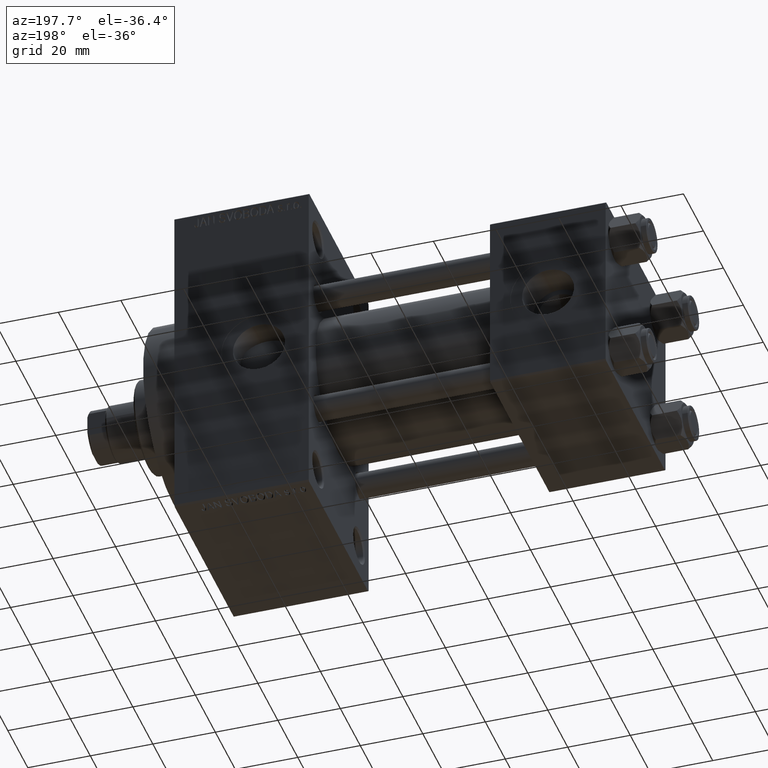
[diagram: clean part render]
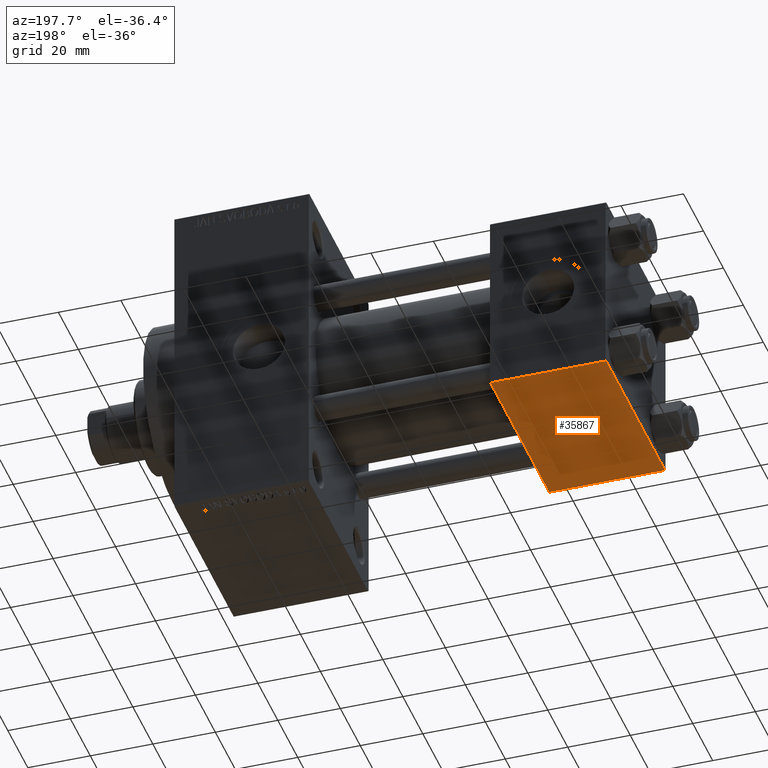
[diagram: same view with one face highlighted and labeled with its STEP entity id]
A machine part, auxiliary view. The second image highlights one B-rep face of the part: STEP entity #35867.
In plain terms, the highlighted planar face has unit normal (0, 0, -1).
Its self-contained STEP definition (entity closure, byte-faithful):
#89 = EDGE_CURVE ( 'NONE', #27281, #12783, #36391, .T. ) ;
#310 = DIRECTION ( 'NONE',  ( 1.000000000000000000, 0.000000000000000000, 0.000000000000000000 ) ) ;
#6825 = CARTESIAN_POINT ( 'NONE',  ( 37.00000000000000000, -29.50000000000000000, -30.00000000000000711 ) ) ;
#7713 = ORIENTED_EDGE ( 'NONE', *, *, #20824, .T. ) ;
#7719 = CARTESIAN_POINT ( 'NONE',  ( 37.00000000000000000, 29.49999999999997868, -30.00000000000000000 ) ) ;
#11921 = FACE_OUTER_BOUND ( 'NONE', #46314, .T. ) ;
#12783 = VERTEX_POINT ( 'NONE', #46217 ) ;
#14303 = ORIENTED_EDGE ( 'NONE', *, *, #22471, .T. ) ;
#15832 = AXIS2_PLACEMENT_3D ( 'NONE', #35555, #20991, #42270 ) ;
#19211 = DIRECTION ( 'NONE',  ( -1.000000000000000000, 0.000000000000000000, 0.000000000000000000 ) ) ;
#20824 = EDGE_CURVE ( 'NONE', #32243, #26105, #23036, .T. ) ;
#20991 = DIRECTION ( 'NONE',  ( 0.000000000000000000, 1.156482317317871725E-16, -1.000000000000000000 ) ) ;
#21735 = ORIENTED_EDGE ( 'NONE', *, *, #22664, .F. ) ;
#22471 = EDGE_CURVE ( 'NONE', #12783, #32243, #45688, .T. ) ;
#22664 = EDGE_CURVE ( 'NONE', #27281, #26105, #44640, .T. ) ;
#22911 = PLANE ( 'NONE',  #15832 ) ;
#23036 = LINE ( 'NONE', #26606, #43192 ) ;
#23583 = VECTOR ( 'NONE', #310, 1000.000000000000000 ) ;
#24245 = CARTESIAN_POINT ( 'NONE',  ( 0.000000000000000000, -29.50000000000000000, -30.00000000000000711 ) ) ;
#24577 = DIRECTION ( 'NONE',  ( 0.000000000000000000, -1.000000000000000000, -1.156482317317871725E-16 ) ) ;
#26105 = VERTEX_POINT ( 'NONE', #24245 ) ;
#26606 = CARTESIAN_POINT ( 'NONE',  ( 0.000000000000000000, -29.50000000000001066, -30.00000000000000711 ) ) ;
#26809 = ORIENTED_EDGE ( 'NONE', *, *, #89, .T. ) ;
#27281 = VERTEX_POINT ( 'NONE', #43304 ) ;
#27506 = CARTESIAN_POINT ( 'NONE',  ( 37.00000000000000000, 29.99999999999999289, -30.00000000000000000 ) ) ;
#30766 = VECTOR ( 'NONE', #24577, 1000.000000000000000 ) ;
#32243 = VERTEX_POINT ( 'NONE', #6825 ) ;
#33629 = CARTESIAN_POINT ( 'NONE',  ( 0.000000000000000000, 29.99999999999999289, -30.00000000000000000 ) ) ;
#34605 = VECTOR ( 'NONE', #45099, 1000.000000000000000 ) ;
#35555 = CARTESIAN_POINT ( 'NONE',  ( 37.00000000000000000, 29.99999999999999289, -30.00000000000000000 ) ) ;
#35867 = ADVANCED_FACE ( 'NONE', ( #11921 ), #22911, .T. ) ;
#36391 = LINE ( 'NONE', #7719, #23583 ) ;
#42270 = DIRECTION ( 'NONE',  ( 0.000000000000000000, 1.000000000000000000, 1.156482317317871725E-16 ) ) ;
#43192 = VECTOR ( 'NONE', #19211, 1000.000000000000000 ) ;
#43304 = CARTESIAN_POINT ( 'NONE',  ( 0.000000000000000000, 29.49999999999997868, -30.00000000000000000 ) ) ;
#44640 = LINE ( 'NONE', #33629, #34605 ) ;
#45099 = DIRECTION ( 'NONE',  ( 0.000000000000000000, -1.000000000000000000, -1.156482317317871725E-16 ) ) ;
#45688 = LINE ( 'NONE', #27506, #30766 ) ;
#46217 = CARTESIAN_POINT ( 'NONE',  ( 37.00000000000000000, 29.49999999999997868, -30.00000000000000000 ) ) ;
#46314 = EDGE_LOOP ( 'NONE', ( #21735, #26809, #14303, #7713 ) ) ;